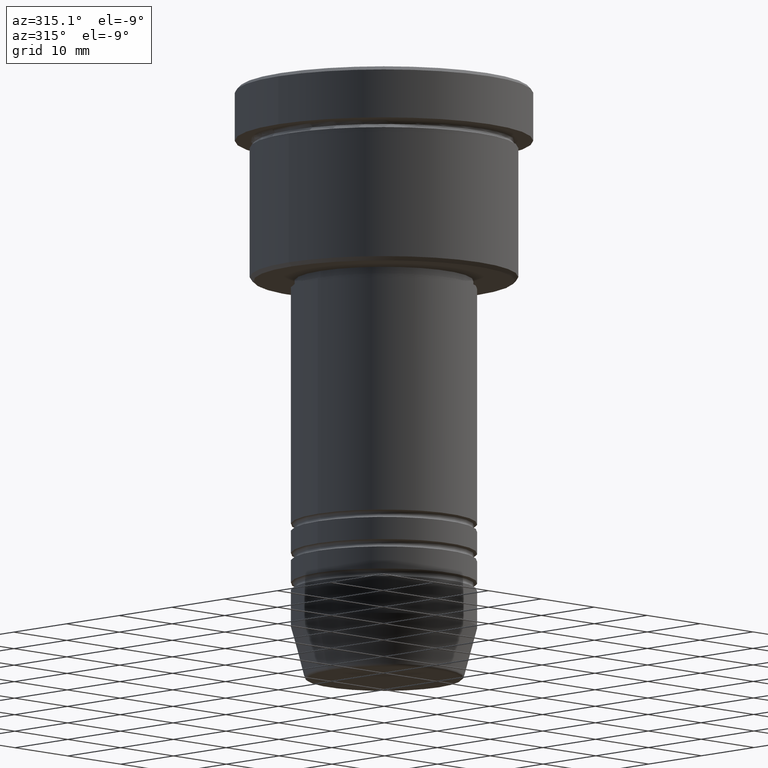
[diagram: clean part render]
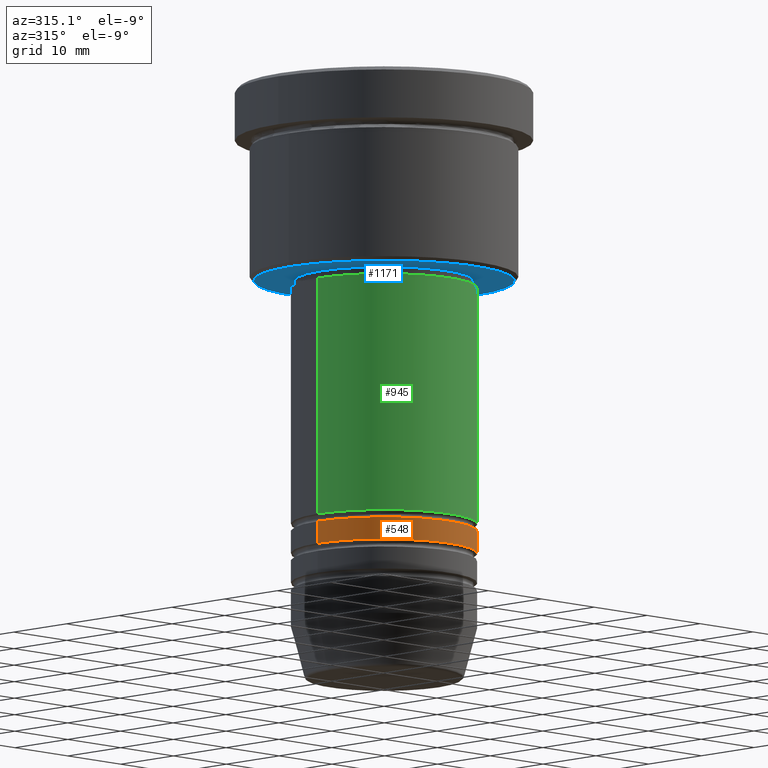
[diagram: same view with three faces highlighted in distinct colors, each labeled with its STEP entity id]
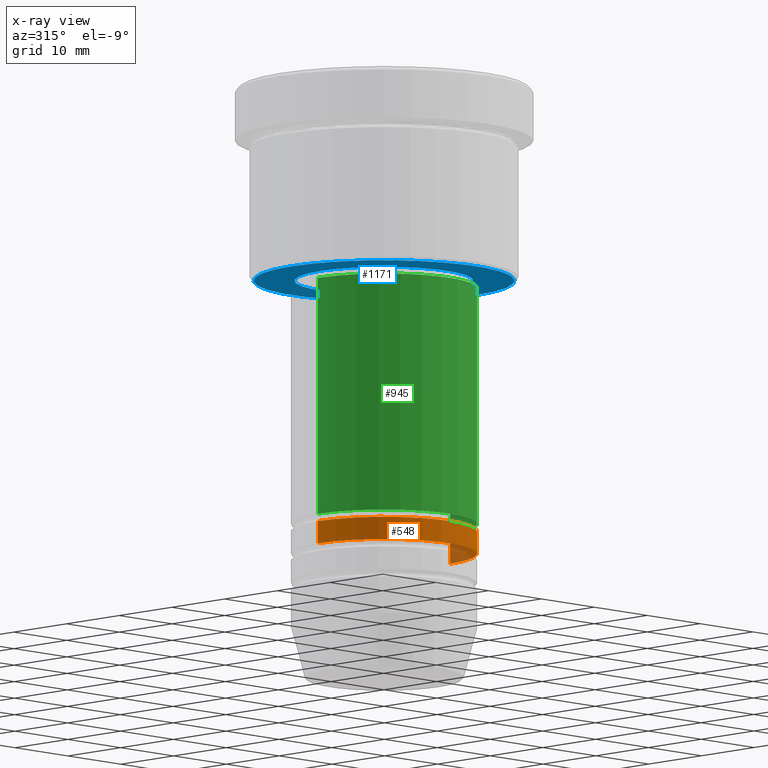
[diagram: x-ray of the same camera — body ghosted, the three highlighted faces saturated]
A machine part, auxiliary view with three faces highlighted in distinct colors.
The next image is the same camera in x-ray (body ghosted, the three faces saturated) — at least one of them is partly hidden behind the body in this view.
Their STEP definitions:

[orange] entity #548 — the highlighted cylindrical surface (partial cylindrical patch) has radius 12.5 mm, axis along (-0, -0, 1).
#73 = CIRCLE ( 'NONE', #715, 12.50000000000000355 ) ;
#138 = EDGE_CURVE ( 'NONE', #634, #323, #1098, .T. ) ;
#139 = CARTESIAN_POINT ( 'NONE',  ( 0.000000000000000000, 0.000000000000000000, -60.00000000000000711 ) ) ;
#145 = ORIENTED_EDGE ( 'NONE', *, *, #1058, .T. ) ;
#174 = EDGE_CURVE ( 'NONE', #323, #681, #972, .T. ) ;
#267 = CARTESIAN_POINT ( 'NONE',  ( 12.50000000000000355, 0.000000000000000000, -63.00000000000000000 ) ) ;
#304 = EDGE_CURVE ( 'NONE', #452, #681, #319, .T. ) ;
#319 = LINE ( 'NONE', #1054, #769 ) ;
#323 = VERTEX_POINT ( 'NONE', #435 ) ;
#330 = EDGE_LOOP ( 'NONE', ( #743, #145, #829, #750 ) ) ;
#390 = FACE_OUTER_BOUND ( 'NONE', #330, .T. ) ;
#435 = CARTESIAN_POINT ( 'NONE',  ( -12.50000000000000000, 1.530808498934191719E-15, -60.00000000000000711 ) ) ;
#452 = VERTEX_POINT ( 'NONE', #267 ) ;
#480 = CARTESIAN_POINT ( 'NONE',  ( -12.50000000000000178, 1.530808498934191719E-15, 0.000000000000000000 ) ) ;
#511 = DIRECTION ( 'NONE',  ( -0.000000000000000000, -0.000000000000000000, 1.000000000000000000 ) ) ;
#548 = ADVANCED_FACE ( 'NONE', ( #390 ), #566, .T. ) ;
#566 = CYLINDRICAL_SURFACE ( 'NONE', #653, 12.50000000000000178 ) ;
#573 = CARTESIAN_POINT ( 'NONE',  ( 0.000000000000000000, 0.000000000000000000, 0.000000000000000000 ) ) ;
#578 = AXIS2_PLACEMENT_3D ( 'NONE', #139, #511, #680 ) ;
#606 = CARTESIAN_POINT ( 'NONE',  ( -12.50000000000000533, 1.530808498934192113E-15, -63.00000000000000000 ) ) ;
#634 = VERTEX_POINT ( 'NONE', #606 ) ;
#653 = AXIS2_PLACEMENT_3D ( 'NONE', #573, #736, #687 ) ;
#680 = DIRECTION ( 'NONE',  ( 1.000000000000000000, 0.000000000000000000, 0.000000000000000000 ) ) ;
#681 = VERTEX_POINT ( 'NONE', #782 ) ;
#685 = CARTESIAN_POINT ( 'NONE',  ( 0.000000000000000000, 0.000000000000000000, -63.00000000000000000 ) ) ;
#687 = DIRECTION ( 'NONE',  ( 1.000000000000000000, 0.000000000000000000, 0.000000000000000000 ) ) ;
#693 = DIRECTION ( 'NONE',  ( 1.000000000000000000, 0.000000000000000000, 0.000000000000000000 ) ) ;
#715 = AXIS2_PLACEMENT_3D ( 'NONE', #685, #1153, #693 ) ;
#736 = DIRECTION ( 'NONE',  ( -0.000000000000000000, -0.000000000000000000, 1.000000000000000000 ) ) ;
#743 = ORIENTED_EDGE ( 'NONE', *, *, #138, .F. ) ;
#750 = ORIENTED_EDGE ( 'NONE', *, *, #174, .F. ) ;
#769 = VECTOR ( 'NONE', #1040, 1000.000000000000000 ) ;
#782 = CARTESIAN_POINT ( 'NONE',  ( 12.50000000000000000, 0.000000000000000000, -60.00000000000000711 ) ) ;
#829 = ORIENTED_EDGE ( 'NONE', *, *, #304, .T. ) ;
#972 = CIRCLE ( 'NONE', #578, 12.50000000000000000 ) ;
#987 = VECTOR ( 'NONE', #1127, 1000.000000000000000 ) ;
#1040 = DIRECTION ( 'NONE',  ( -0.000000000000000000, -0.000000000000000000, 1.000000000000000000 ) ) ;
#1054 = CARTESIAN_POINT ( 'NONE',  ( 12.50000000000000178, 0.000000000000000000, 0.000000000000000000 ) ) ;
#1058 = EDGE_CURVE ( 'NONE', #634, #452, #73, .T. ) ;
#1098 = LINE ( 'NONE', #480, #987 ) ;
#1127 = DIRECTION ( 'NONE',  ( -0.000000000000000000, -0.000000000000000000, 1.000000000000000000 ) ) ;
#1153 = DIRECTION ( 'NONE',  ( -0.000000000000000000, -0.000000000000000000, 1.000000000000000000 ) ) ;

[blue] entity #1171 — the highlighted planar face has unit normal (0, 0, -1).
#17 = CARTESIAN_POINT ( 'NONE',  ( 0.000000000000000000, 0.000000000000000000, -26.00000000000000000 ) ) ;
#27 = ORIENTED_EDGE ( 'NONE', *, *, #321, .T. ) ;
#34 = ORIENTED_EDGE ( 'NONE', *, *, #1147, .T. ) ;
#42 = DIRECTION ( 'NONE',  ( 0.000000000000000000, 0.000000000000000000, -1.000000000000000000 ) ) ;
#110 = AXIS2_PLACEMENT_3D ( 'NONE', #260, #530, #812 ) ;
#165 = PLANE ( 'NONE',  #550 ) ;
#216 = EDGE_LOOP ( 'NONE', ( #679, #34 ) ) ;
#217 = AXIS2_PLACEMENT_3D ( 'NONE', #17, #394, #400 ) ;
#230 = VERTEX_POINT ( 'NONE', #1059 ) ;
#260 = CARTESIAN_POINT ( 'NONE',  ( 0.000000000000000000, 0.000000000000000000, -26.00000000000000000 ) ) ;
#321 = EDGE_CURVE ( 'NONE', #230, #375, #598, .T. ) ;
#375 = VERTEX_POINT ( 'NONE', #890 ) ;
#380 = VERTEX_POINT ( 'NONE', #993 ) ;
#389 = EDGE_CURVE ( 'NONE', #380, #860, #989, .T. ) ;
#394 = DIRECTION ( 'NONE',  ( -0.000000000000000000, -0.000000000000000000, 1.000000000000000000 ) ) ;
#400 = DIRECTION ( 'NONE',  ( 1.000000000000000000, 0.000000000000000000, 0.000000000000000000 ) ) ;
#422 = FACE_OUTER_BOUND ( 'NONE', #216, .T. ) ;
#440 = AXIS2_PLACEMENT_3D ( 'NONE', #605, #612, #597 ) ;
#526 = CARTESIAN_POINT ( 'NONE',  ( 0.000000000000000000, 18.00000000000000000, -26.00000000000000000 ) ) ;
#530 = DIRECTION ( 'NONE',  ( 0.000000000000000000, 0.000000000000000000, -1.000000000000000000 ) ) ;
#537 = DIRECTION ( 'NONE',  ( 1.000000000000000000, 0.000000000000000000, 0.000000000000000000 ) ) ;
#545 = CARTESIAN_POINT ( 'NONE',  ( 0.000000000000000000, 0.000000000000000000, -26.00000000000000000 ) ) ;
#550 = AXIS2_PLACEMENT_3D ( 'NONE', #526, #42, #1159 ) ;
#562 = ORIENTED_EDGE ( 'NONE', *, *, #1033, .T. ) ;
#597 = DIRECTION ( 'NONE',  ( -1.000000000000000000, 0.000000000000000000, 0.000000000000000000 ) ) ;
#598 = CIRCLE ( 'NONE', #1176, 12.00000000000000000 ) ;
#605 = CARTESIAN_POINT ( 'NONE',  ( 0.000000000000000000, 0.000000000000000000, -26.00000000000000000 ) ) ;
#612 = DIRECTION ( 'NONE',  ( 0.000000000000000000, 0.000000000000000000, -1.000000000000000000 ) ) ;
#679 = ORIENTED_EDGE ( 'NONE', *, *, #389, .T. ) ;
#710 = FACE_BOUND ( 'NONE', #942, .T. ) ;
#812 = DIRECTION ( 'NONE',  ( -1.000000000000000000, 0.000000000000000000, 0.000000000000000000 ) ) ;
#860 = VERTEX_POINT ( 'NONE', #1088 ) ;
#890 = CARTESIAN_POINT ( 'NONE',  ( -12.00000000000000000, 1.469576158976823947E-15, -26.00000000000000000 ) ) ;
#913 = CIRCLE ( 'NONE', #440, 17.50000000000000000 ) ;
#942 = EDGE_LOOP ( 'NONE', ( #27, #562 ) ) ;
#989 = CIRCLE ( 'NONE', #110, 17.50000000000000000 ) ;
#993 = CARTESIAN_POINT ( 'NONE',  ( 17.50000000000000000, 0.000000000000000000, -26.00000000000000000 ) ) ;
#1033 = EDGE_CURVE ( 'NONE', #375, #230, #1050, .T. ) ;
#1050 = CIRCLE ( 'NONE', #217, 12.00000000000000000 ) ;
#1059 = CARTESIAN_POINT ( 'NONE',  ( 12.00000000000000000, 0.000000000000000000, -26.00000000000000000 ) ) ;
#1088 = CARTESIAN_POINT ( 'NONE',  ( -17.50000000000000000, 2.173748068486551641E-15, -26.00000000000000000 ) ) ;
#1147 = EDGE_CURVE ( 'NONE', #860, #380, #913, .T. ) ;
#1159 = DIRECTION ( 'NONE',  ( -1.000000000000000000, 0.000000000000000000, -0.000000000000000000 ) ) ;
#1164 = DIRECTION ( 'NONE',  ( -0.000000000000000000, -0.000000000000000000, 1.000000000000000000 ) ) ;
#1171 = ADVANCED_FACE ( 'NONE', ( #422, #710 ), #165, .T. ) ;
#1176 = AXIS2_PLACEMENT_3D ( 'NONE', #545, #1164, #537 ) ;

[green] entity #945 — the highlighted cylindrical surface (partial cylindrical patch) has radius 12.5 mm, axis along (-0, -0, 1).
#9 = CARTESIAN_POINT ( 'NONE',  ( 0.000000000000000000, 0.000000000000000000, -27.00000000000000355 ) ) ;
#21 = ORIENTED_EDGE ( 'NONE', *, *, #895, .T. ) ;
#23 = ORIENTED_EDGE ( 'NONE', *, *, #425, .F. ) ;
#30 = CARTESIAN_POINT ( 'NONE',  ( 0.000000000000000000, 0.000000000000000000, 0.000000000000000000 ) ) ;
#32 = CIRCLE ( 'NONE', #790, 12.50000000000000000 ) ;
#75 = LINE ( 'NONE', #623, #952 ) ;
#118 = VERTEX_POINT ( 'NONE', #926 ) ;
#119 = DIRECTION ( 'NONE',  ( 1.000000000000000000, 0.000000000000000000, 0.000000000000000000 ) ) ;
#150 = ORIENTED_EDGE ( 'NONE', *, *, #1013, .F. ) ;
#160 = AXIS2_PLACEMENT_3D ( 'NONE', #30, #762, #1109 ) ;
#182 = CARTESIAN_POINT ( 'NONE',  ( -12.50000000000000000, 1.530808498934191521E-15, -27.00000000000000355 ) ) ;
#203 = VERTEX_POINT ( 'NONE', #614 ) ;
#205 = EDGE_LOOP ( 'NONE', ( #23, #21, #988, #150 ) ) ;
#314 = CARTESIAN_POINT ( 'NONE',  ( 0.000000000000000000, 0.000000000000000000, -59.00000000000000711 ) ) ;
#338 = CIRCLE ( 'NONE', #601, 12.50000000000000000 ) ;
#341 = CARTESIAN_POINT ( 'NONE',  ( 12.50000000000000000, 0.000000000000000000, -27.00000000000000355 ) ) ;
#365 = CARTESIAN_POINT ( 'NONE',  ( 12.50000000000000000, 0.000000000000000000, 0.000000000000000000 ) ) ;
#379 = DIRECTION ( 'NONE',  ( -0.000000000000000000, -0.000000000000000000, 1.000000000000000000 ) ) ;
#386 = DIRECTION ( 'NONE',  ( -0.000000000000000000, -0.000000000000000000, 1.000000000000000000 ) ) ;
#425 = EDGE_CURVE ( 'NONE', #203, #839, #75, .T. ) ;
#564 = FACE_OUTER_BOUND ( 'NONE', #205, .T. ) ;
#601 = AXIS2_PLACEMENT_3D ( 'NONE', #9, #386, #751 ) ;
#608 = VERTEX_POINT ( 'NONE', #341 ) ;
#614 = CARTESIAN_POINT ( 'NONE',  ( -12.50000000000000000, 1.530808498934191521E-15, -59.00000000000000711 ) ) ;
#623 = CARTESIAN_POINT ( 'NONE',  ( -12.50000000000000000, 1.530808498934191521E-15, 0.000000000000000000 ) ) ;
#733 = LINE ( 'NONE', #365, #806 ) ;
#751 = DIRECTION ( 'NONE',  ( 1.000000000000000000, 0.000000000000000000, 0.000000000000000000 ) ) ;
#755 = CYLINDRICAL_SURFACE ( 'NONE', #160, 12.50000000000000000 ) ;
#762 = DIRECTION ( 'NONE',  ( -0.000000000000000000, -0.000000000000000000, 1.000000000000000000 ) ) ;
#790 = AXIS2_PLACEMENT_3D ( 'NONE', #314, #837, #119 ) ;
#806 = VECTOR ( 'NONE', #379, 1000.000000000000000 ) ;
#837 = DIRECTION ( 'NONE',  ( -0.000000000000000000, -0.000000000000000000, 1.000000000000000000 ) ) ;
#839 = VERTEX_POINT ( 'NONE', #182 ) ;
#852 = EDGE_CURVE ( 'NONE', #118, #608, #733, .T. ) ;
#895 = EDGE_CURVE ( 'NONE', #203, #118, #32, .T. ) ;
#926 = CARTESIAN_POINT ( 'NONE',  ( 12.50000000000000000, 0.000000000000000000, -59.00000000000000711 ) ) ;
#945 = ADVANCED_FACE ( 'NONE', ( #564 ), #755, .T. ) ;
#952 = VECTOR ( 'NONE', #976, 1000.000000000000000 ) ;
#976 = DIRECTION ( 'NONE',  ( -0.000000000000000000, -0.000000000000000000, 1.000000000000000000 ) ) ;
#988 = ORIENTED_EDGE ( 'NONE', *, *, #852, .T. ) ;
#1013 = EDGE_CURVE ( 'NONE', #839, #608, #338, .T. ) ;
#1109 = DIRECTION ( 'NONE',  ( 1.000000000000000000, 0.000000000000000000, 0.000000000000000000 ) ) ;